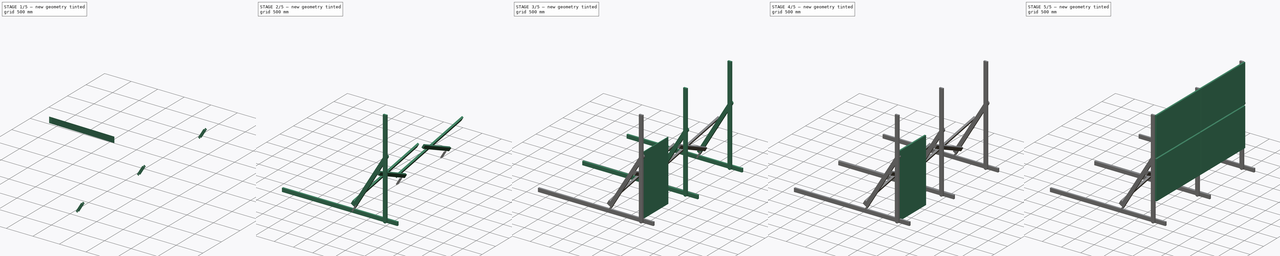
[diagram: build sequence overview — one tinted view per stage of 5, left to right]
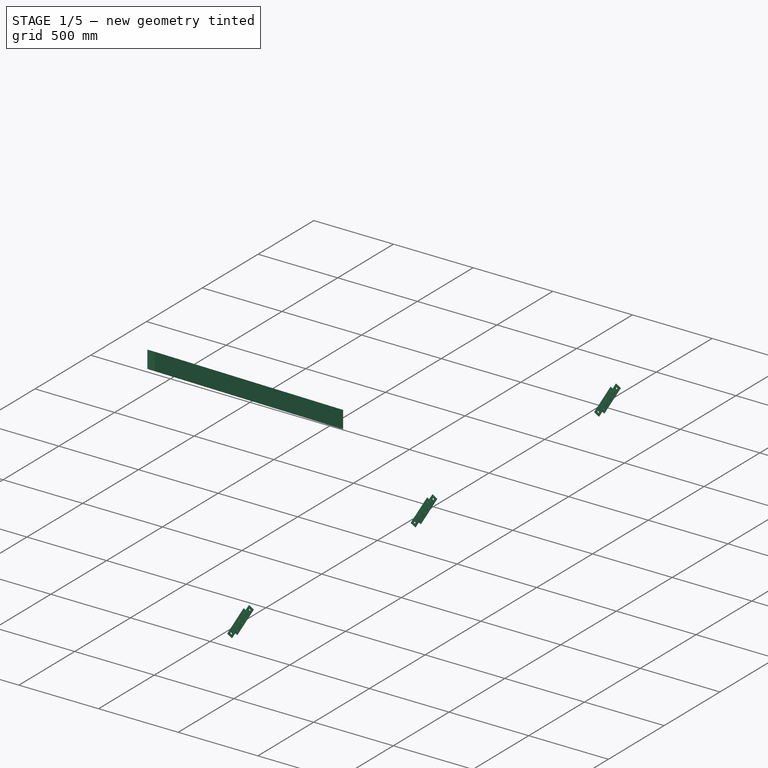
[diagram: stage 1 of 5 — iso view after this stage's code; geometry added in this stage tinted green]
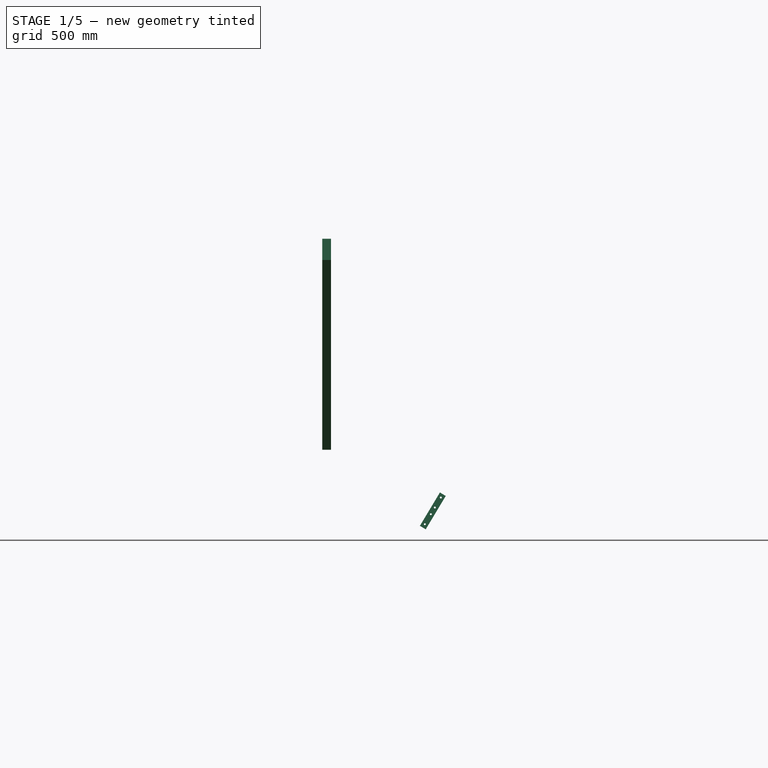
[diagram: stage 1 of 5 — front view after this stage's code; geometry added in this stage tinted green]
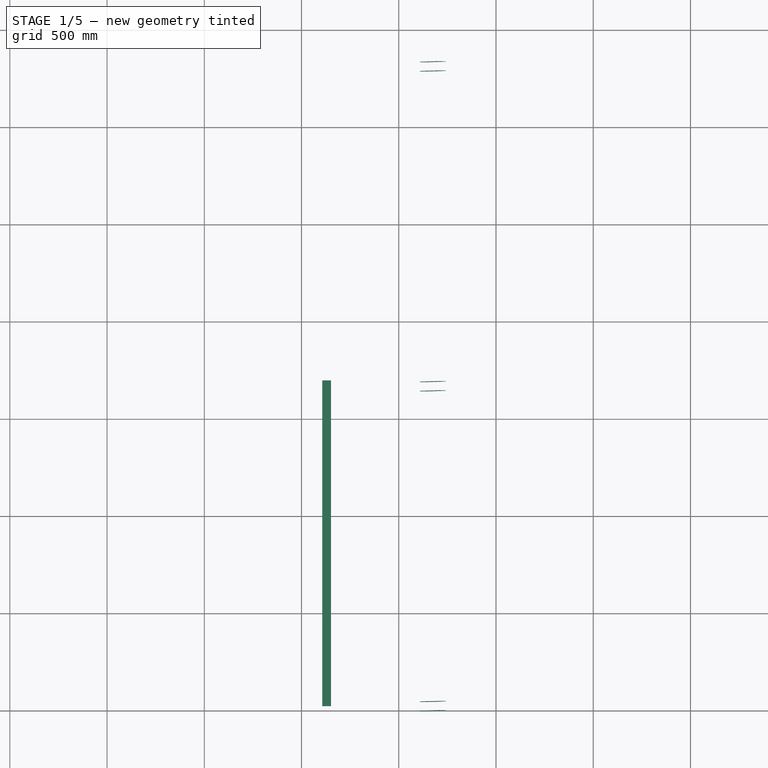
[diagram: stage 1 of 5 — top view after this stage's code; geometry added in this stage tinted green]
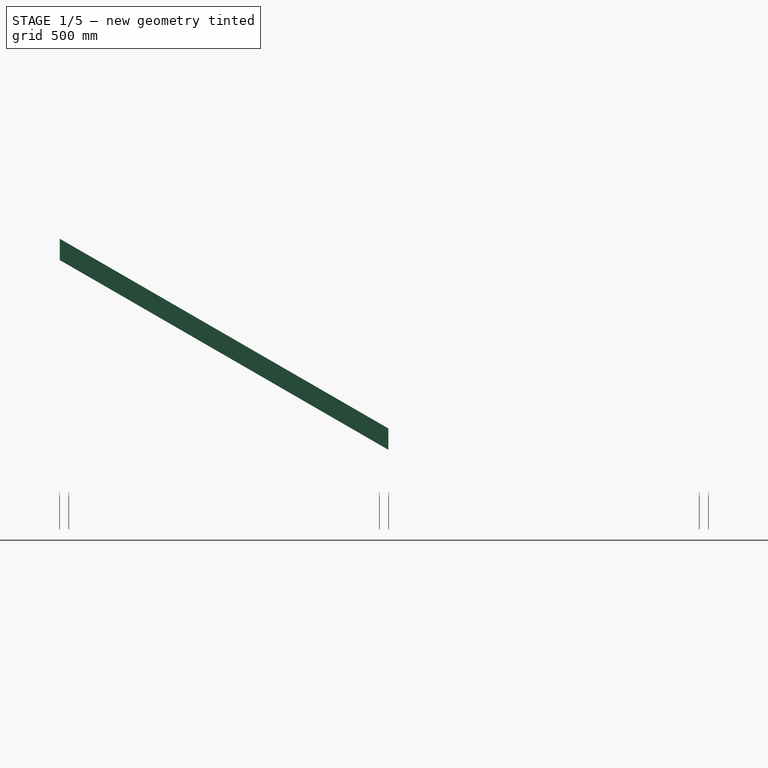
[diagram: stage 1 of 5 — right view after this stage's code; geometry added in this stage tinted green]
FCSTD DOCUMENT  (FreeCAD 0.16R)
Label: solar_mount8
License: All rights reserved
LicenseURL: http://en.wikipedia.org/wiki/All_rights_reserved
objects: Sketcher::SketchObject×9, PartDesign::Pad×8, Part::FeaturePython×6, Part::Cut×4, Part::Cylinder×4, Part::Fuse×2, Part::Compound×2, Spreadsheet::Sheet×1
note: 43 computed .brp shape members not serialized (recipe doc carries the construction recipe); baked Part::Feature solids carry a one-line shape summary decoded from their .brp

FEATURE [Sketcher::SketchObject] Sketch014
  Placement = pos=(-1488.52,4.22287e-05,258.48) rot=(0.57735,0.57735,0.57735;2.0944rad)
  expr: Constraints[20] = Spreadsheet.panel_delning + Spreadsheet.timmer_tjock
  expr: Constraints[18] = Spreadsheet.timmer_bredd
  sketch-geometry (8):
    g0: LineSegment StartX=0 StartY=0 StartZ=0 EndX=0 EndY=109.697 EndZ=0
    g1: LineSegment StartX=0 StartY=109.697 StartZ=0 EndX=1690 EndY=1085.42 EndZ=0
    g2: LineSegment StartX=1690 StartY=1085.42 StartZ=0 EndX=1690 EndY=975.722 EndZ=0
    g3: LineSegment StartX=1690 StartY=975.722 StartZ=0 EndX=0 EndY=0 EndZ=0
    g4: LineSegment [constr] StartX=1690 StartY=1085.42 StartZ=0 EndX=1737.5 EndY=1003.15 EndZ=0
    g5: LineSegment [constr] StartX=1737.5 StartY=1003.15 StartZ=0 EndX=1690 EndY=975.722 EndZ=0
    g6: LineSegment [constr] StartX=0 StartY=0 StartZ=0 EndX=-47.5 EndY=82.2724 EndZ=0
    g7: LineSegment [constr] StartX=-47.5 StartY=82.2724 StartZ=0 EndX=0 EndY=109.697 EndZ=0
  constraints (22):
    c: Coincident(g-1,g0)
    c: PointOnObject(g0,g-2)
    c: Coincident(g0,g1)
    c: Coincident(g1,g2)
    c: Vertical(g2)
    c: Coincident(g2,g3)
    c: Coincident(g3,g0)
    c: Parallel(g3,g1)
    c: Coincident(g1,g4)
    c: Coincident(g4,g5)
    c: Coincident(g5,g2)
    c: Coincident(g-1,g6)
    c: Coincident(g6,g7)
    c: Coincident(g7,g0)
    c: Parallel(g7,g1)
    c: Parallel(g5,g3)
    c: Perpendicular(g5,g4)
    c: Perpendicular(g7,g6)
    c: Distance(g-1,g6) = 95
    c: Angle(g-1,g3) = 0.523599
    c: DistanceX(g-1,g2) = 1690
    c: Distance(g-1,g4) = 2006.29
FEATURE [PartDesign::Pad] Pad012
  Length = 45
  Length2 = 100
  Placement = pos=(-1488.52,4.22287e-05,258.48) rot=(0.57735,0.57735,0.57735;2.0944rad)
  Reversed = true
  Sketch = -> Sketch014
  Type = 0
  expr: Length = Spreadsheet.timmer_tjock
FEATURE [Part::FeaturePython] Clone  label="Clone of Pad012"  # Draft clone (typed FeaturePython)
  Objects = -> [Pad012]
  Placement = pos=(-1393.52,4.22287e-05,1468.16) rot=(0.57735,0.57735,-0.57735;4.18879rad)
  Scale = (1,1,1)
FEATURE [Sketcher::SketchObject] Sketch016
  Placement = pos=(0,47.5,0) rot=(1,0,0;1.5708rad)
  expr: Constraints[40] = Spreadsheet.timmer_bredd / 2
  expr: Constraints[34] = Spreadsheet.timmer_bredd / 2
  expr: Constraints[9] = Spreadsheet.vipp_center + 1000mm
  expr: Constraints[6] = Spreadsheet.vipp_center
  sketch-geometry (46):
    g0: LineSegment [constr] StartX=0 StartY=0 StartZ=0 EndX=-866.025 EndY=0 EndZ=0
    g1: GeomPoint [constr] X=0 Y=1500 Z=0
    g2: LineSegment [constr] StartX=0 StartY=0 StartZ=0 EndX=0 EndY=1500 EndZ=0
    g3: LineSegment [constr] StartX=0 StartY=1500 StartZ=0 EndX=0 EndY=2500 EndZ=0
    g4: LineSegment [constr] StartX=0 StartY=1500 StartZ=0 EndX=-866.025 EndY=0 EndZ=0
    g5: ArcOfCircle [constr] CenterX=0 CenterY=1500 CenterZ=0 NormalX=0 NormalY=0 NormalZ=1 Radius=47.5 StartAngle=5.74227 EndAngle=8.88387
    g6: LineSegment [constr] StartX=-792.36 StartY=88.6236 StartZ=0 EndX=40.7189 EndY=1475.54 EndZ=0
    g7: LineSegment [constr] StartX=-40.7189 StartY=1524.46 StartZ=0 EndX=-873.798 EndY=137.541 EndZ=0
    g8: LineSegment [constr] StartX=0 StartY=1500 StartZ=0 EndX=-40.7189 EndY=1524.46 EndZ=0
    g9: LineSegment [constr] StartX=0 StartY=1500 StartZ=0 EndX=40.7189 EndY=1475.54 EndZ=0
    g10: LineSegment [constr] StartX=0 StartY=0 StartZ=0 EndX=-1149.07 EndY=964.181 EndZ=0
    g11: LineSegment [constr] StartX=-1149.07 StartY=964.181 StartZ=0 EndX=-2587.94 EndY=0 EndZ=0
    g12: LineSegment [constr] StartX=-2587.94 StartY=0 StartZ=0 EndX=-866.025 EndY=0 EndZ=0
    g13: LineSegment [constr] StartX=0 StartY=0 StartZ=0 EndX=0 EndY=47.5 EndZ=0
    g14: LineSegment [constr] StartX=0 StartY=47.5 StartZ=0 EndX=-2587.94 EndY=47.5 EndZ=0
    g15: LineSegment [constr] StartX=-2587.94 StartY=47.5 StartZ=0 EndX=-2587.94 EndY=0 EndZ=0
    g16: LineSegment [constr] StartX=-1149.07 StartY=964.181 StartZ=0 EndX=-1122.62 EndY=924.722 EndZ=0
    g17: LineSegment [constr] StartX=-1122.62 StartY=924.722 StartZ=0 EndX=-2482.05 EndY=47.5 EndZ=0
    g18: LineSegment [constr] StartX=-873.798 StartY=137.541 StartZ=0 EndX=-809.065 EndY=98.6578 EndZ=0
    g19: LineSegment [constr] StartX=-809.065 StartY=98.6578 StartZ=0 EndX=-792.36 EndY=88.6236 EndZ=0
    g20: LineSegment [constr] StartX=-2614.23 StartY=3.86031 StartZ=0 EndX=-2604.74 EndY=-10.844 EndZ=0
    g21: LineSegment [constr] StartX=-2604.74 StartY=-10.844 StartZ=0 EndX=-2595.26 EndY=-25.5484 EndZ=0
    g22: LineSegment [constr] StartX=-2595.26 StartY=-25.5484 StartZ=0 EndX=-2427.21 EndY=82.8919 EndZ=0
    g23: LineSegment [constr] StartX=-2427.21 StartY=82.8919 StartZ=0 EndX=-2438.38 EndY=100.216 EndZ=0
    g24: LineSegment [constr] StartX=-2438.38 StartY=100.216 StartZ=0 EndX=-2446.18 EndY=112.301 EndZ=0
    g25: LineSegment [constr] StartX=-2446.18 StartY=112.301 StartZ=0 EndX=-2614.23 EndY=3.86031 EndZ=0
    g26: LineSegment [constr] StartX=-2604.74 StartY=-10.844 StartZ=0 EndX=-2587.94 EndY=0 EndZ=0
    g27: GeomPoint [constr] X=-2482.05 Y=47.5 Z=0
    g28: LineSegment [constr] StartX=-2482.05 StartY=47.5 StartZ=0 EndX=-2492.62 EndY=63.8739 EndZ=0
    g29: LineSegment StartX=-788.355 StartY=163.322 StartZ=0 EndX=-891.338 EndY=-8.12614 EndZ=0
    g30: LineSegment StartX=-891.338 StartY=-8.12614 StartZ=0 EndX=-876.324 EndY=-17.1448 EndZ=0
    g31: LineSegment StartX=-876.324 StartY=-17.1448 StartZ=0 EndX=-861.309 EndY=-26.1634 EndZ=0
    g32: LineSegment StartX=-861.309 StartY=-26.1634 StartZ=0 EndX=-792.36 EndY=88.6236 EndZ=0
    g33: LineSegment [constr] StartX=-876.324 StartY=-17.1448 StartZ=0 EndX=-866.025 EndY=0 EndZ=0
    g34: LineSegment StartX=-792.36 StartY=88.6236 StartZ=0 EndX=-758.326 EndY=145.284 EndZ=0
    g35: LineSegment StartX=-788.355 StartY=163.322 StartZ=0 EndX=-773.34 EndY=154.303 EndZ=0
    g36: LineSegment StartX=-773.34 StartY=154.303 StartZ=0 EndX=-758.326 EndY=145.284 EndZ=0
    g37: LineSegment [constr] StartX=-866.025 StartY=0 StartZ=0 EndX=-835.13 EndY=51.4344 EndZ=0
    g38: LineSegment [constr] StartX=-835.13 StartY=51.4344 StartZ=0 EndX=-824.832 EndY=68.5792 EndZ=0
    g39: LineSegment [constr] StartX=-824.832 StartY=68.5792 StartZ=0 EndX=-814.534 EndY=85.724 EndZ=0
    g40: LineSegment [constr] StartX=-814.534 StartY=85.724 StartZ=0 EndX=-783.639 EndY=137.158 EndZ=0
    g41: LineSegment [constr] StartX=-783.639 StartY=137.158 StartZ=0 EndX=-773.34 EndY=154.303 EndZ=0
    g42: Circle CenterX=-866.025 CenterY=0 CenterZ=0 NormalX=0 NormalY=0 NormalZ=1 Radius=5
    g43: Circle CenterX=-835.13 CenterY=51.4344 CenterZ=0 NormalX=0 NormalY=0 NormalZ=1 Radius=5
    g44: Circle CenterX=-814.534 CenterY=85.724 CenterZ=0 NormalX=0 NormalY=0 NormalZ=1 Radius=5
    g45: Circle CenterX=-783.639 CenterY=137.158 CenterZ=0 NormalX=0 NormalY=0 NormalZ=1 Radius=5
  constraints (122):
    c: Coincident(g-1,g0)
    c: Horizontal(g0)
    c: Coincident(g-1,g2)
    c: Coincident(g2,g1)
    c: Coincident(g2,g3)
    c: Vertical(g3)
    c: DistanceY(g2,g2) = 1500
    c: Coincident(g4,g1)
    c: Coincident(g4,g0)
    c: DistanceY(g-1,g3) = 2500
    c: Angle(g4,g2) = 0.523599
    c: Coincident(g5,g1)
    c: Coincident(g6,g5)
    c: Coincident(g7,g5)
    c: Distance(g5,g5) = 95
    c: Vertical(g2)
    c: Coincident(g8,g1)
    c: Coincident(g8,g5)
    c: Coincident(g9,g1)
    c: Coincident(g9,g5)
    c: Equal(g8,g9)
    c: Perpendicular(g9,g6)
    c: Perpendicular(g7,g8)
    c: Coincident(g-1,g10)
    c: Coincident(g10,g11)
    c: Coincident(g11,g12)
    c: Coincident(g12,g0)
    c: Horizontal(g12)
    c: Coincident(g-1,g13)
    c: Coincident(g13,g14)
    c: Horizontal(g14)
    c: Coincident(g14,g15)
    c: Coincident(g15,g11)
    c: Vertical(g15)
    c: Distance(g13) = 47.5
    c: Vertical(g13)
    c: Coincident(g10,g16)
    c: Coincident(g16,g17)
    c: Equal(g11,g4)
    c: Equal(g10,g2)
    c: Distance(g16) = 47.5
    c: Perpendicular(g11,g16)
    c: Coincident(g7,g18)
    c: PointOnObject(g18,g4)
    c: Coincident(g18,g19)
    c: Coincident(g19,g6)
    c: Parallel(g19,g18)
    c: Perpendicular(g6,g19)
    c: Distance(g6,g7) = 95
    c: Coincident(g20,g21)
    c: Coincident(g21,g22)
    c: Coincident(g22,g23)
    c: PointOnObject(g23,g11)
    c: Coincident(g23,g24)
    c: Coincident(g24,g25)
    c: Coincident(g25,g20)
    c: Parallel(g21,g20)
    c: Parallel(g20,g24)
    c: Parallel(g24,g23)
    c: Parallel(g25,g22)
    c: Perpendicular(g25,g24)
    c: Parallel(g17,g22)
    c: Distance(g24,g20) = 200
    c: Distance(g21,g20) = 35
    c: Coincident(g20,g26)
    c: Coincident(g26,g11)
    c: Parallel(g26,g22)
    c: Distance(g26) = 20
    c: PointOnObject(g17,g14)
    c: PointOnObject(g27,g22)
    c: Coincident(g27,g17)
    c: Equal(g20,g21)
    c: Equal(g6,g17)
    c: Coincident(g17,g28)
    c: PointOnObject(g28,g11)
    c: Perpendicular(g22,g28)
    c: Equal(g28,g19)
    c: Angle(g10,g0) = 0.698132
    c: PointOnObject(g34,g6)
    c: Coincident(g29,g30)
    c: Coincident(g30,g31)
    c: Coincident(g31,g32)
    c: Coincident(g32,g6)
    c: Parallel(g32,g29)
    c: Parallel(g29,g6)
    c: Parallel(g30,g31)
    c: Coincident(g30,g33)
    c: Coincident(g33,g0)
    c: Coincident(g6,g34)
    c: Equal(g33,g26)
    c: Equal(g25,g29)
    c: Equal(g31,g30)
    c: Coincident(g29,g35)
    c: Coincident(g35,g36)
    c: Coincident(g36,g34)
    c: Parallel(g36,g35)
    c: Equal(g36,g35)
    c: Perpendicular(g35,g29)
    c: Parallel(g30,g35)
    c: Parallel(g33,g32)
    c: Coincident(g0,g37)
    c: Coincident(g37,g38)
    c: Coincident(g38,g39)
    c: Parallel(g39,g38)
    c: Parallel(g38,g37)
    c: Coincident(g39,g40)
    c: Coincident(g40,g41)
    c: Coincident(g41,g35)
    c: Parallel(g41,g40)
    c: Parallel(g40,g39)
    c: Equal(g41,g33)
    c: Equal(g39,g38)
    c: Equal(g38,g41)
    c: Equal(g37,g40)
    c: Coincident(g42,g0)
    c: Coincident(g43,g37)
    c: Coincident(g44,g39)
    c: Coincident(g45,g40)
    c: Equal(g45,g44)
    c: Equal(g44,g43)
    c: Equal(g43,g42)
    c: Radius(g42) = 5
FEATURE [PartDesign::Pad] Pad014
  Length = 2.5
  Length2 = 100
  Placement = pos=(0,47.5,0) rot=(1,0,0;1.5708rad)
  Sketch = -> Sketch016
  Type = 0
FEATURE [Part::FeaturePython] Array006  # Draft array (typed FeaturePython)
  Angle = 360
  ArrayType = 0
  Axis = (0,0,1)
  Base = -> Pad014
  Center = (0,0,0)
  Fuse = false
  IntervalAxis = (0,0,0)
  IntervalX = (1,0,0)
  IntervalY = (0,-47.5,0)
  IntervalZ = (0,0,0)
  NumberPolar = 1
  NumberX = 1
  NumberY = 2
  NumberZ = 1
  expr: IntervalY.y = -Spreadsheet.timmer_tjock - 2.5mm
FEATURE [Part::FeaturePython] Array007  label="Hålplattor"  # Draft array (typed FeaturePython)
  Angle = 360
  ArrayType = 0
  Axis = (0,0,1)
  Base = -> Array006
  Center = (0,0,0)
  Fuse = false
  IntervalAxis = (0,0,0)
  IntervalX = (1,0,0)
  IntervalY = (0,1645,0)
  IntervalZ = (0,0,0)
  NumberPolar = 1
  NumberX = 1
  NumberY = 3
  NumberZ = 1
  expr: NumberY = Spreadsheet.antal_paneler / 2 + 1
  expr: IntervalY.y = Spreadsheet.panel_delning
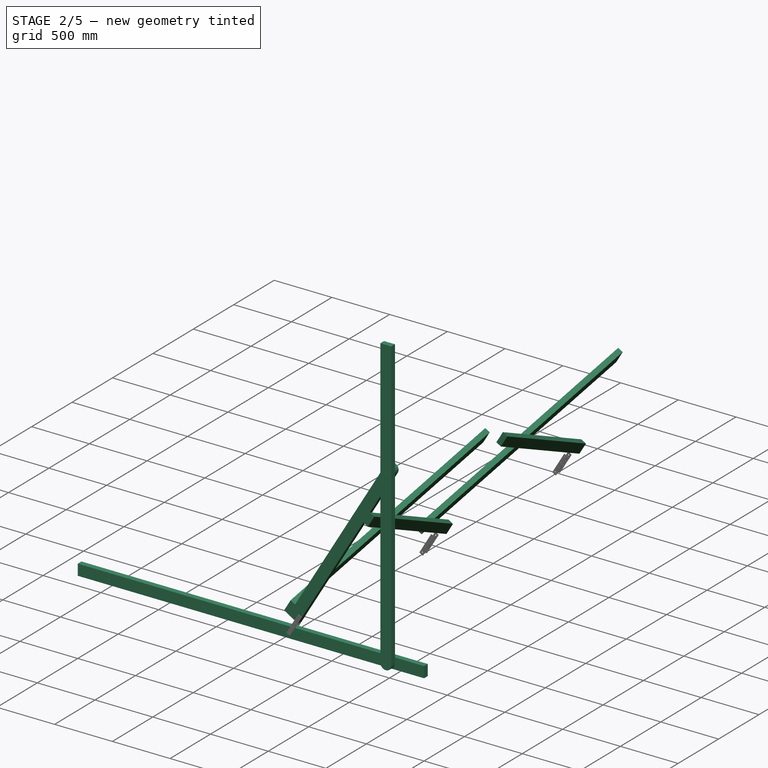
[diagram: stage 2 of 5 — iso view after this stage's code; geometry added in this stage tinted green]
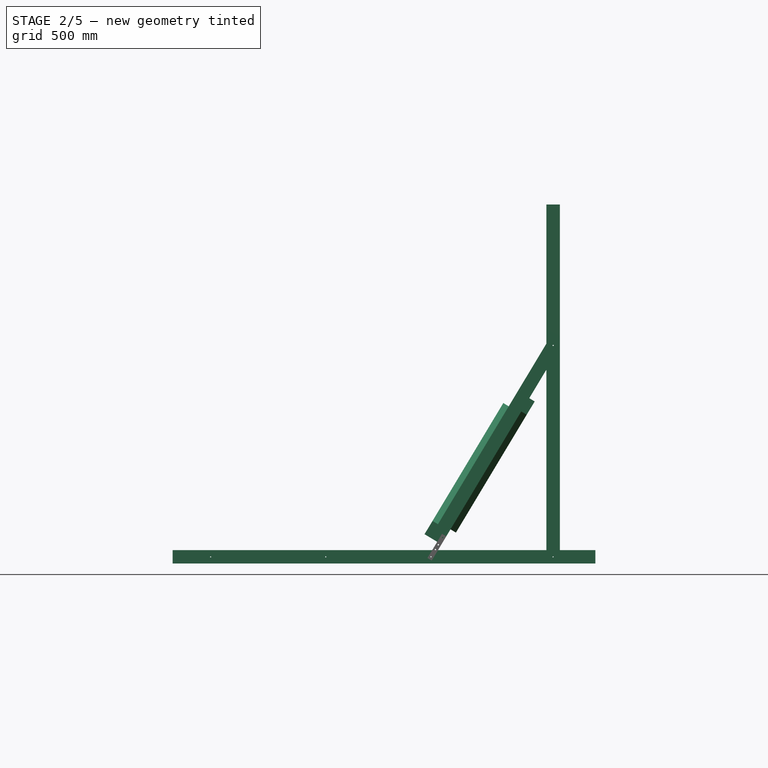
[diagram: stage 2 of 5 — front view after this stage's code; geometry added in this stage tinted green]
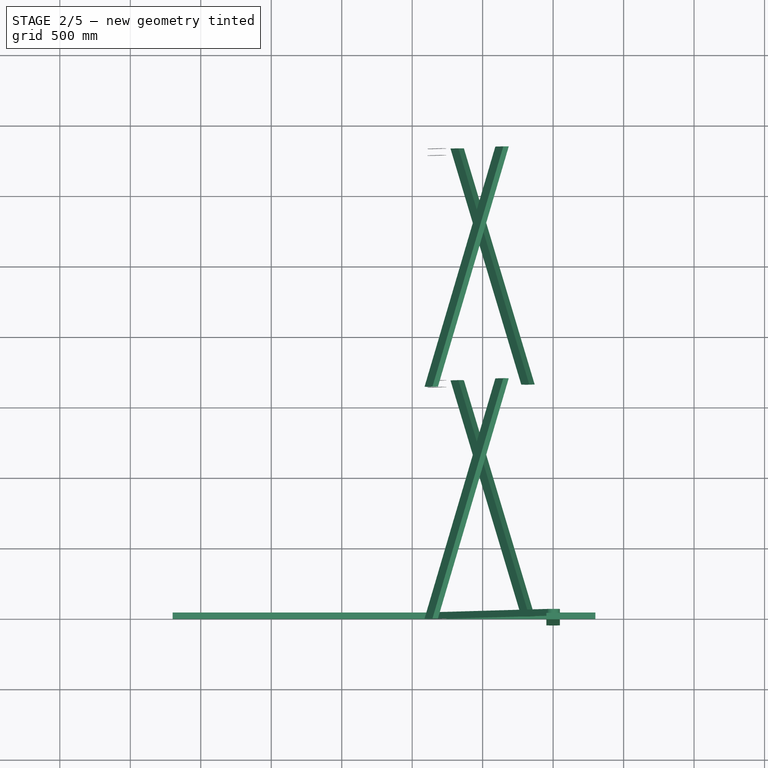
[diagram: stage 2 of 5 — top view after this stage's code; geometry added in this stage tinted green]
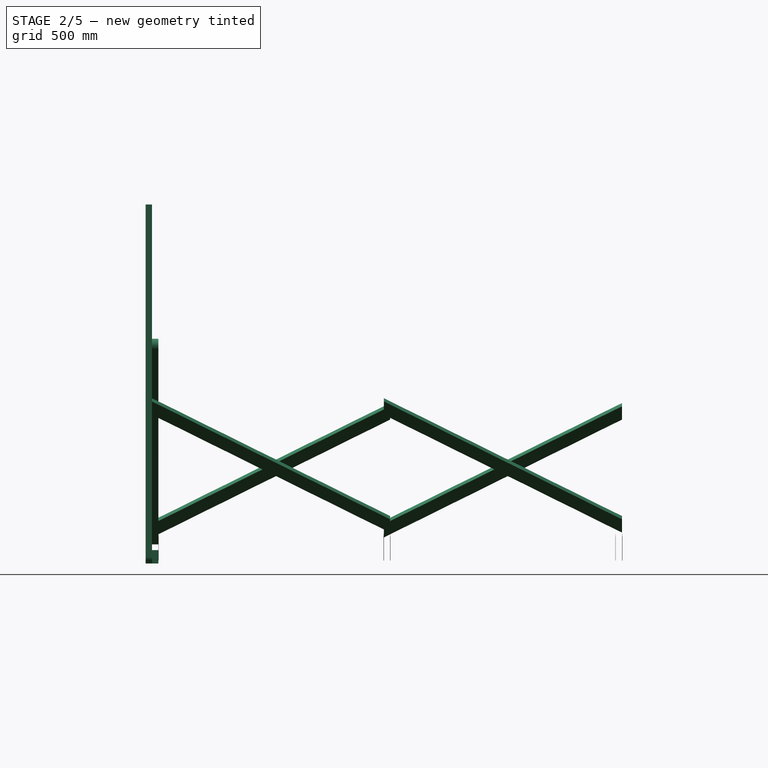
[diagram: stage 2 of 5 — right view after this stage's code; geometry added in this stage tinted green]
FEATURE [Sketcher::SketchObject] Sketch009
  Placement = pos=(0,0,0) rot=(1,0,0;1.5708rad)
  sketch-geometry (20):
    g0: LineSegment StartX=0 StartY=0 StartZ=0 EndX=-1154.7 EndY=0 EndZ=0
    g1: GeomPoint [constr] X=0 Y=2000 Z=0
    g2: LineSegment StartX=0 StartY=0 StartZ=0 EndX=-1414.21 EndY=1414.21 EndZ=0
    g3: LineSegment [constr] StartX=-1414.21 StartY=1414.21 StartZ=0 EndX=-3239.96 EndY=0 EndZ=0
    g4: LineSegment StartX=0 StartY=0 StartZ=0 EndX=0 EndY=2000 EndZ=0
    g5: LineSegment StartX=0 StartY=2000 StartZ=0 EndX=0 EndY=3000 EndZ=0
    g6: LineSegment StartX=0 StartY=2000 StartZ=0 EndX=-1154.7 EndY=0 EndZ=0
    g7: LineSegment StartX=-1154.7 StartY=0 StartZ=0 EndX=-3239.96 EndY=0 EndZ=0
    g8: LineSegment StartX=0 StartY=0 StartZ=0 EndX=-765.367 EndY=1847.76 EndZ=0
    g9: LineSegment StartX=-765.367 StartY=1847.76 StartZ=0 EndX=-2150.69 EndY=0 EndZ=0
    g10: LineSegment StartX=-3239.96 StartY=0 StartZ=0 EndX=-4000 EndY=0 EndZ=0
    g11: LineSegment StartX=-1414.21 StartY=1414.21 StartZ=0 EndX=-1694.63 EndY=1197 EndZ=0
    g12: LineSegment StartX=-1694.63 StartY=1197 StartZ=0 EndX=-2959.54 EndY=217.209 EndZ=0
    g13: LineSegment StartX=-2959.54 StartY=217.209 StartZ=0 EndX=-3239.96 EndY=0 EndZ=0
    g14: LineSegment StartX=-3239.96 StartY=0 StartZ=0 EndX=-4219.75 EndY=1264.91 EndZ=0
    g15: LineSegment StartX=-4219.75 StartY=1264.91 StartZ=0 EndX=-3939.34 EndY=1482.12 EndZ=0
    g16: LineSegment StartX=-3939.34 StartY=1482.12 StartZ=0 EndX=-2674.42 EndY=2461.92 EndZ=0
    g17: LineSegment StartX=-2674.42 StartY=2461.92 StartZ=0 EndX=-2394.01 EndY=2679.12 EndZ=0
    g18: LineSegment StartX=-2394.01 StartY=2679.12 StartZ=0 EndX=-1414.21 EndY=1414.21 EndZ=0
    g19: LineSegment StartX=-3939.34 StartY=1482.12 StartZ=0 EndX=-1694.63 EndY=1197 EndZ=0
  constraints (52):
    c: Coincident(g-1,g0)
    c: Horizontal(g0)
    c: Coincident(g-1,g2)
    c: Coincident(g2,g3)
    c: Coincident(g-1,g4)
    c: Coincident(g4,g1)
    c: Vertical(g4)
    c: Coincident(g4,g5)
    c: Vertical(g5)
    c: Equal(g4,g2)
    c: DistanceY(g4,g4) = 2000
    c: Angle(g4,g2) = 0.785398
    c: Coincident(g6,g1)
    c: Coincident(g6,g0)
    c: Coincident(g6,g7)
    c: Coincident(g7,g3)
    c: Horizontal(g7)
    c: Equal(g6,g3)
    c: Coincident(g-1,g8)
    c: Coincident(g8,g9)
    c: PointOnObject(g9,g7)
    c: Equal(g9,g6)
    c: Equal(g8,g4)
    c: Angle(g4,g8) = 0.392699
    c: DistanceY(g-1,g5) = 3000
    c: Coincident(g3,g10)
    c: Horizontal(g10)
    c: Angle(g6,g4) = 0.523599
    c: DistanceX(g10,g-1) = 4000
    c: Coincident(g2,g11)
    c: Coincident(g11,g12)
    c: Coincident(g12,g13)
    c: Coincident(g13,g3)
    c: Coincident(g13,g14)
    c: Coincident(g14,g15)
    c: Coincident(g15,g16)
    c: Coincident(g16,g17)
    c: Coincident(g17,g18)
    c: Coincident(g18,g11)
    c: Perpendicular(g14,g3)
    c: Distance(g17,g2) = 1600
    c: Equal(g15,g13)
    c: Equal(g13,g11)
    c: Equal(g11,g17)
    c: Parallel(g15,g16)
    c: Parallel(g16,g17)
    c: Equal(g14,g18)
    c: Perpendicular(g3,g18)
    c: Tangent(g12,g3) = -1.5708
    c: Coincident(g15,g19)
    c: Coincident(g19,g11)
    c: Angle(g19,g3) = 0.785398
FEATURE [Sketcher::SketchObject] Sketch010
  Placement = pos=(0,0,0) rot=(1,0,0;1.5708rad)
  expr: Constraints[24] = Spreadsheet.timmer_bredd
  expr: Constraints[9] = Spreadsheet.vipp_center + 1000mm
  expr: Constraints[6] = Spreadsheet.vipp_center
  sketch-geometry (14):
    g0: LineSegment [constr] StartX=0 StartY=0 StartZ=0 EndX=-866.025 EndY=0 EndZ=0
    g1: GeomPoint [constr] X=0 Y=1500 Z=0
    g2: LineSegment [constr] StartX=0 StartY=0 StartZ=0 EndX=0 EndY=1500 EndZ=0
    g3: LineSegment [constr] StartX=0 StartY=1500 StartZ=0 EndX=0 EndY=2500 EndZ=0
    g4: LineSegment [constr] StartX=0 StartY=1500 StartZ=0 EndX=-866.025 EndY=0 EndZ=0
    g5: LineSegment [constr] StartX=0 StartY=2e-11 StartZ=0 EndX=47.5 EndY=2e-11 EndZ=0
    g6: LineSegment StartX=47.5 StartY=2e-11 StartZ=0 EndX=47.5 EndY=2500 EndZ=0
    g7: LineSegment StartX=47.5 StartY=2500 StartZ=0 EndX=0 EndY=2500 EndZ=0
    g8: LineSegment StartX=0 StartY=2500 StartZ=0 EndX=-47.5 EndY=2500 EndZ=0
    g9: LineSegment StartX=-47.5 StartY=2500 StartZ=0 EndX=-47.5 EndY=2e-11 EndZ=0
    g10: LineSegment [constr] StartX=-47.5 StartY=2e-11 StartZ=0 EndX=0 EndY=2e-11 EndZ=0
    g11: Circle CenterX=0 CenterY=1500 CenterZ=0 NormalX=0 NormalY=0 NormalZ=1 Radius=4
    g12: Circle CenterX=0 CenterY=0 CenterZ=0 NormalX=0 NormalY=0 NormalZ=1 Radius=4
    g13: ArcOfCircle CenterX=0 CenterY=0 CenterZ=0 NormalX=0 NormalY=0 NormalZ=1 Radius=47.5 StartAngle=3.14159 EndAngle=6.28319
  constraints (35):
    c: Coincident(g-1,g0)
    c: Horizontal(g0)
    c: Coincident(g-1,g2)
    c: Coincident(g2,g1)
    c: Coincident(g2,g3)
    c: Vertical(g3)
    c: DistanceY(g2,g2) = 1500
    c: Coincident(g4,g1)
    c: Coincident(g4,g0)
    c: DistanceY(g-1,g3) = 2500
    c: Angle(g4,g2) = 0.523599
    c: Vertical(g2)
    c: Horizontal(g5)
    c: Coincident(g5,g6)
    c: Vertical(g6)
    c: Coincident(g6,g7)
    c: Coincident(g7,g3)
    c: Coincident(g7,g8)
    c: Horizontal(g8)
    c: Coincident(g8,g9)
    c: Vertical(g9)
    c: Coincident(g9,g10)
    c: Coincident(g10,g5)
    c: Horizontal(g10)
    c: DistanceX(g9,g5) = 95
    c: Equal(g10,g5)
    c: Horizontal(g7)
    c: Coincident(g11,g1)
    c: Coincident(g12,g-1)
    c: Equal(g12,g11)
    c: Radius(g12) = 4
    c: Coincident(g5,g-1)
    c: Coincident(g13,g-1)
    c: Coincident(g13,g5)
    c: Coincident(g13,g9)
FEATURE [PartDesign::Pad] Pad008  label="Vipparm"
  Length = 45
  Length2 = 100
  Placement = pos=(0,0,0) rot=(1,0,0;1.5708rad)
  Sketch = -> Sketch010
  Type = 0
FEATURE [Sketcher::SketchObject] Sketch011
  Placement = pos=(0,0,0) rot=(1,0,0;1.5708rad)
  expr: Constraints[43] = Spreadsheet.timmer_bredd
  expr: Constraints[23] = Spreadsheet.vipp_center + 1000mm
  expr: Constraints[9] = Spreadsheet.vipp_center
  sketch-geometry (21):
    g0: LineSegment [constr] StartX=0 StartY=0 StartZ=0 EndX=-866.025 EndY=0 EndZ=0
    g1: GeomPoint [constr] X=0 Y=1500 Z=0
    g2: LineSegment [constr] StartX=0 StartY=0 StartZ=0 EndX=-1060.66 EndY=1060.66 EndZ=0
    g3: LineSegment [constr] StartX=-1060.66 StartY=1060.66 StartZ=0 EndX=-2429.97 EndY=0 EndZ=0
    g4: LineSegment [constr] StartX=0 StartY=0 StartZ=0 EndX=0 EndY=1500 EndZ=0
    g5: LineSegment [constr] StartX=0 StartY=1500 StartZ=0 EndX=0 EndY=2500 EndZ=0
    g6: LineSegment [constr] StartX=0 StartY=1500 StartZ=0 EndX=-866.025 EndY=0 EndZ=0
    g7: LineSegment [constr] StartX=-866.025 StartY=0 StartZ=0 EndX=-2429.97 EndY=0 EndZ=0
    g8: LineSegment [constr] StartX=0 StartY=0 StartZ=0 EndX=-574.025 EndY=1385.82 EndZ=0
    g9: LineSegment [constr] StartX=-574.025 StartY=1385.82 StartZ=0 EndX=-1613.02 EndY=0 EndZ=0
    g10: LineSegment [constr] StartX=-2429.97 StartY=0 StartZ=0 EndX=-2700 EndY=0 EndZ=0
    g11: LineSegment StartX=300 StartY=0 StartZ=0 EndX=300 EndY=47.5 EndZ=0
    g12: LineSegment StartX=300 StartY=47.5 StartZ=0 EndX=-2700 EndY=47.5 EndZ=0
    g13: LineSegment StartX=-2700 StartY=47.5 StartZ=0 EndX=-2700 EndY=0 EndZ=0
    g14: LineSegment StartX=-2700 StartY=0 StartZ=0 EndX=-2700 EndY=-47.5 EndZ=0
    g15: LineSegment StartX=-2700 StartY=-47.5 StartZ=0 EndX=300 EndY=-47.5 EndZ=0
    g16: LineSegment StartX=300 StartY=-47.5 StartZ=0 EndX=300 EndY=0 EndZ=0
    g17: Circle CenterX=0 CenterY=0 CenterZ=0 NormalX=0 NormalY=0 NormalZ=1 Radius=4
    g18: Circle CenterX=-866.025 CenterY=0 CenterZ=0 NormalX=0 NormalY=0 NormalZ=1 Radius=4
    g19: Circle CenterX=-1613.02 CenterY=0 CenterZ=0 NormalX=0 NormalY=0 NormalZ=1 Radius=4
    g20: Circle CenterX=-2429.97 CenterY=0 CenterZ=0 NormalX=0 NormalY=0 NormalZ=1 Radius=4
  constraints (54):
    c: Coincident(g-1,g0)
    c: Horizontal(g0)
    c: Coincident(g-1,g2)
    c: Coincident(g-1,g4)
    c: Coincident(g4,g1)
    c: Vertical(g4)
    c: Coincident(g4,g5)
    c: Vertical(g5)
    c: Equal(g4,g2)
    c: DistanceY(g4,g4) = 1500
    c: Angle(g4,g2) = 0.785398
    c: Coincident(g6,g1)
    c: Coincident(g6,g0)
    c: Coincident(g6,g7)
    c: Coincident(g7,g3)
    c: Horizontal(g7)
    c: Equal(g6,g3)
    c: Coincident(g-1,g8)
    c: Coincident(g8,g9)
    c: PointOnObject(g9,g7)
    c: Equal(g9,g6)
    c: Equal(g8,g4)
    c: Angle(g4,g8) = 0.392699
    c: DistanceY(g-1,g5) = 2500
    c: Coincident(g3,g10)
    c: Horizontal(g10)
    c: Angle(g6,g4) = 0.523599
    c: DistanceX(g10,g-1) = 2700
    c: Coincident(g2,g3)
    c: PointOnObject(g11,g-1)
    c: Vertical(g11)
    c: Coincident(g11,g12)
    c: Horizontal(g12)
    c: Coincident(g12,g13)
    c: Coincident(g13,g10)
    c: Coincident(g13,g14)
    c: Vertical(g14)
    c: Coincident(g14,g15)
    c: Horizontal(g15)
    c: Coincident(g15,g16)
    c: Coincident(g16,g11)
    c: Vertical(g16)
    c: Equal(g16,g11)
    c: DistanceY(g15,g11) = 95
    c: Vertical(g13)
    c: DistanceX(g-1,g15) = 300
    c: Coincident(g17,g-1)
    c: Coincident(g18,g0)
    c: Coincident(g19,g9)
    c: Coincident(g20,g3)
    c: Equal(g20,g19)
    c: Equal(g19,g18)
    c: Equal(g18,g17)
    c: Radius(g17) = 4
FEATURE [PartDesign::Pad] Pad009  label="Bas001"
  Length = 45
  Length2 = 100
  Placement = pos=(0,0,0) rot=(1,0,0;1.5708rad)
  Reversed = true
  Sketch = -> Sketch011
  Type = 0
FEATURE [Sketcher::SketchObject] Sketch013
  Placement = pos=(0,45,0) rot=(1,0,0;1.5708rad)
  expr: Constraints[42] = Spreadsheet.timmer_bredd / 2
  expr: Constraints[36] = Spreadsheet.timmer_bredd / 2
  expr: Constraints[9] = Spreadsheet.vipp_center + 1000mm
  expr: Constraints[6] = Spreadsheet.vipp_center
  sketch-geometry (33):
    g0: LineSegment [constr] StartX=0 StartY=0 StartZ=0 EndX=-866.025 EndY=0 EndZ=0
    g1: GeomPoint [constr] X=0 Y=1500 Z=0
    g2: LineSegment [constr] StartX=0 StartY=0 StartZ=0 EndX=0 EndY=1500 EndZ=0
    g3: LineSegment [constr] StartX=0 StartY=1500 StartZ=0 EndX=0 EndY=2500 EndZ=0
    g4: LineSegment [constr] StartX=0 StartY=1500 StartZ=0 EndX=-866.025 EndY=0 EndZ=0
    g5: ArcOfCircle CenterX=0 CenterY=1500 CenterZ=0 NormalX=0 NormalY=0 NormalZ=1 Radius=47.5 StartAngle=5.74227 EndAngle=8.88387
    g6: LineSegment StartX=-792.36 StartY=88.6236 StartZ=0 EndX=40.7189 EndY=1475.54 EndZ=0
    g7: LineSegment StartX=-40.7189 StartY=1524.46 StartZ=0 EndX=-873.798 EndY=137.541 EndZ=0
    g8: LineSegment [constr] StartX=0 StartY=1500 StartZ=0 EndX=-40.7189 EndY=1524.46 EndZ=0
    g9: LineSegment [constr] StartX=0 StartY=1500 StartZ=0 EndX=40.7189 EndY=1475.54 EndZ=0
    g10: Circle CenterX=0 CenterY=1500 CenterZ=0 NormalX=0 NormalY=0 NormalZ=1 Radius=4
    g11: LineSegment [constr] StartX=0 StartY=0 StartZ=0 EndX=-1149.07 EndY=964.181 EndZ=0
    g12: LineSegment [constr] StartX=-1149.07 StartY=964.181 StartZ=0 EndX=-2587.94 EndY=0 EndZ=0
    g13: LineSegment [constr] StartX=-2587.94 StartY=0 StartZ=0 EndX=-866.025 EndY=0 EndZ=0
    g14: LineSegment [constr] StartX=0 StartY=0 StartZ=0 EndX=0 EndY=47.5 EndZ=0
    g15: LineSegment [constr] StartX=0 StartY=47.5 StartZ=0 EndX=-2587.94 EndY=47.5 EndZ=0
    g16: LineSegment [constr] StartX=-2587.94 StartY=47.5 StartZ=0 EndX=-2587.94 EndY=0 EndZ=0
    g17: LineSegment [constr] StartX=-1149.07 StartY=964.181 StartZ=0 EndX=-1122.62 EndY=924.722 EndZ=0
    g18: LineSegment [constr] StartX=-1122.62 StartY=924.722 StartZ=0 EndX=-2482.05 EndY=47.5 EndZ=0
    g19: LineSegment StartX=-873.798 StartY=137.541 StartZ=0 EndX=-809.065 EndY=98.6578 EndZ=0
    g20: LineSegment StartX=-809.065 StartY=98.6578 StartZ=0 EndX=-792.36 EndY=88.6236 EndZ=0
    g21: LineSegment [constr] StartX=-2614.23 StartY=3.86031 StartZ=0 EndX=-2604.74 EndY=-10.844 EndZ=0
    g22: LineSegment [constr] StartX=-2604.74 StartY=-10.844 StartZ=0 EndX=-2595.26 EndY=-25.5484 EndZ=0
    g23: LineSegment [constr] StartX=-2595.26 StartY=-25.5484 StartZ=0 EndX=-2427.21 EndY=82.8919 EndZ=0
    g24: LineSegment [constr] StartX=-2427.21 StartY=82.8919 StartZ=0 EndX=-2438.38 EndY=100.216 EndZ=0
    g25: LineSegment [constr] StartX=-2438.38 StartY=100.216 StartZ=0 EndX=-2446.18 EndY=112.301 EndZ=0
    g26: LineSegment [constr] StartX=-2446.18 StartY=112.301 StartZ=0 EndX=-2614.23 EndY=3.86031 EndZ=0
    g27: LineSegment [constr] StartX=-2604.74 StartY=-10.844 StartZ=0 EndX=-2587.94 EndY=0 EndZ=0
    g28: GeomPoint [constr] X=-2482.05 Y=47.5 Z=0
    g29: LineSegment [constr] StartX=-2482.05 StartY=47.5 StartZ=0 EndX=-2492.62 EndY=63.8739 EndZ=0
    g30: LineSegment [constr] StartX=0 StartY=1500 StartZ=0 EndX=23.75 EndY=1541.14 EndZ=0
    g31: LineSegment [constr] StartX=-873.798 StartY=137.541 StartZ=0 EndX=-833.079 EndY=113.082 EndZ=0
    g32: LineSegment [constr] StartX=-833.079 StartY=113.082 StartZ=0 EndX=-792.36 EndY=88.6236 EndZ=0
  constraints (89):
    c: Coincident(g-1,g0)
    c: Horizontal(g0)
    c: Coincident(g-1,g2)
    c: Coincident(g2,g1)
    c: Coincident(g2,g3)
    c: Vertical(g3)
    c: DistanceY(g2,g2) = 1500
    c: Coincident(g4,g1)
    c: Coincident(g4,g0)
    c: DistanceY(g-1,g3) = 2500
    c: Angle(g4,g2) = 0.523599
    c: Coincident(g5,g1)
    c: Coincident(g6,g5)
    c: Coincident(g7,g5)
    c: Distance(g5,g5) = 95
    c: Vertical(g2)
    c: Coincident(g8,g1)
    c: Coincident(g8,g5)
    c: Coincident(g9,g1)
    c: Coincident(g9,g5)
    c: Equal(g8,g9)
    c: Perpendicular(g9,g6)
    c: Perpendicular(g7,g8)
    c: Coincident(g10,g1)
    c: Radius(g10) = 4
    c: Coincident(g-1,g11)
    c: Coincident(g11,g12)
    c: Coincident(g12,g13)
    c: Coincident(g13,g0)
    c: Horizontal(g13)
    c: Coincident(g-1,g14)
    c: Coincident(g14,g15)
    c: Horizontal(g15)
    c: Coincident(g15,g16)
    c: Coincident(g16,g12)
    c: Vertical(g16)
    c: Distance(g14) = 47.5
    c: Vertical(g14)
    c: Coincident(g11,g17)
    c: Coincident(g17,g18)
    c: Equal(g12,g4)
    c: Equal(g11,g2)
    c: Distance(g17) = 47.5
    c: Perpendicular(g12,g17)
    c: Coincident(g7,g19)
    c: PointOnObject(g19,g4)
    c: Coincident(g19,g20)
    c: Coincident(g20,g6)
    c: Parallel(g20,g19)
    c: Perpendicular(g6,g20)
    c: Distance(g6,g7) = 95
    c: Coincident(g21,g22)
    c: Coincident(g22,g23)
    c: Coincident(g23,g24)
    c: PointOnObject(g24,g12)
    c: Coincident(g24,g25)
    c: Coincident(g25,g26)
    c: Coincident(g26,g21)
    c: Parallel(g22,g21)
    c: Parallel(g21,g25)
    c: Parallel(g25,g24)
    c: Parallel(g26,g23)
    c: Perpendicular(g26,g25)
    c: Parallel(g18,g23)
    c: Distance(g25,g21) = 200
    c: Distance(g22,g21) = 35
    c: Coincident(g21,g27)
    c: Coincident(g27,g12)
    c: Parallel(g27,g23)
    c: Distance(g27) = 20
    c: PointOnObject(g18,g15)
    c: PointOnObject(g28,g23)
    c: Coincident(g28,g18)
    c: Equal(g21,g22)
    c: Equal(g6,g18)
    c: Coincident(g18,g29)
    c: PointOnObject(g29,g12)
    c: Perpendicular(g23,g29)
    c: Equal(g29,g20)
    c: Angle(g11,g0) = 0.698132
    c: Coincident(g30,g1)
    c: PointOnObject(g30,g5)
    c: Parallel(g30,g4)
    c: Coincident(g7,g31)
    c: Coincident(g31,g32)
    c: Coincident(g32,g6)
    c: Equal(g31,g32)
    c: Parallel(g32,g19)
    c: Distance(g31,g30) = 1665.38
FEATURE [PartDesign::Pad] Pad011  label="Justeringsarm"
  Length = 45
  Length2 = 100
  Placement = pos=(0,45,0) rot=(1,0,0;1.5708rad)
  Sketch = -> Sketch013
  Type = 0
  expr: Length = Spreadsheet.timmer_tjock
FEATURE [Part::Compound] Compound001  label="Kryss"
  Links = -> [Clone,Pad012]
FEATURE [Part::FeaturePython] Array002  label="KryssArray"  # Draft array (typed FeaturePython)
  Angle = 360
  ArrayType = 0
  Axis = (0,0,1)
  Base = -> Compound001
  Center = (0,0,0)
  Fuse = false
  IntervalAxis = (0,0,0)
  IntervalX = (1,0,0)
  IntervalY = (0,1645,0)
  IntervalZ = (0,0,0)
  NumberPolar = 1
  NumberX = 1
  NumberY = 2
  NumberZ = 1
  Placement = pos=(269.127,-4.22287e-05,-850.505) rot=(0,1,0;0.540912rad)
  expr: IntervalY.y = Spreadsheet.panel_delning
  expr: NumberY = Spreadsheet.antal_paneler / 2
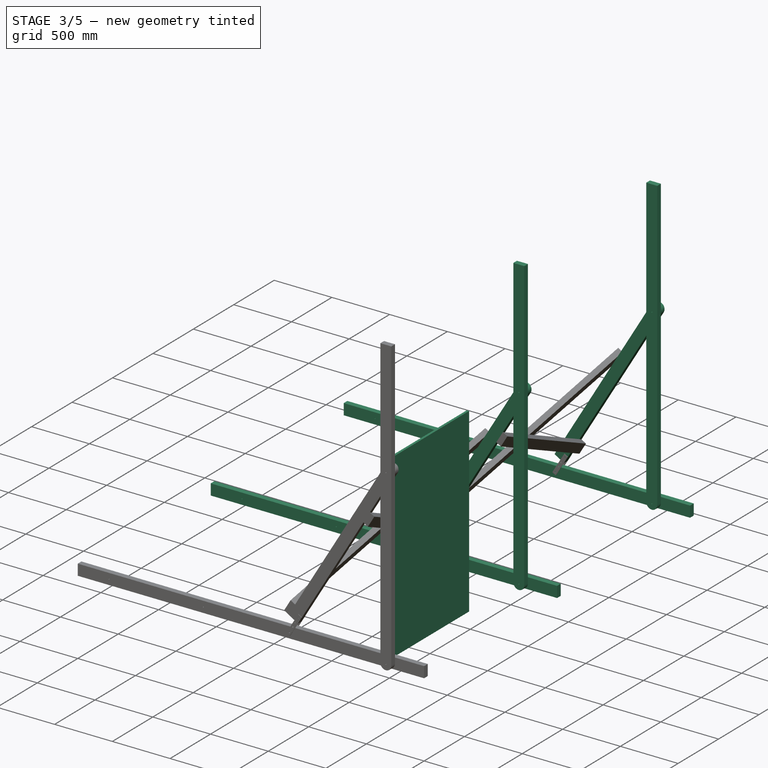
[diagram: stage 3 of 5 — iso view after this stage's code; geometry added in this stage tinted green]
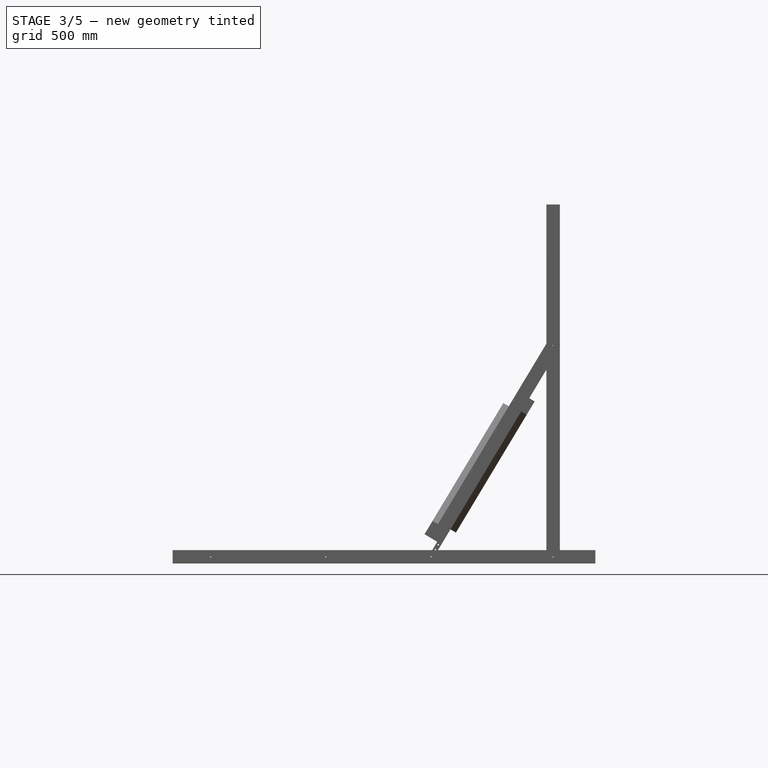
[diagram: stage 3 of 5 — front view after this stage's code; geometry added in this stage tinted green]
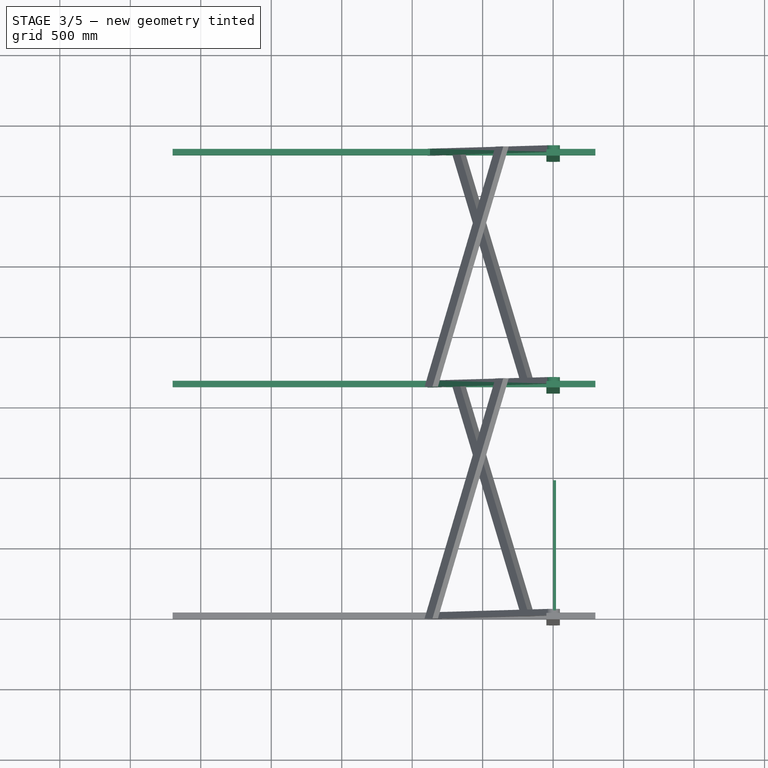
[diagram: stage 3 of 5 — top view after this stage's code; geometry added in this stage tinted green]
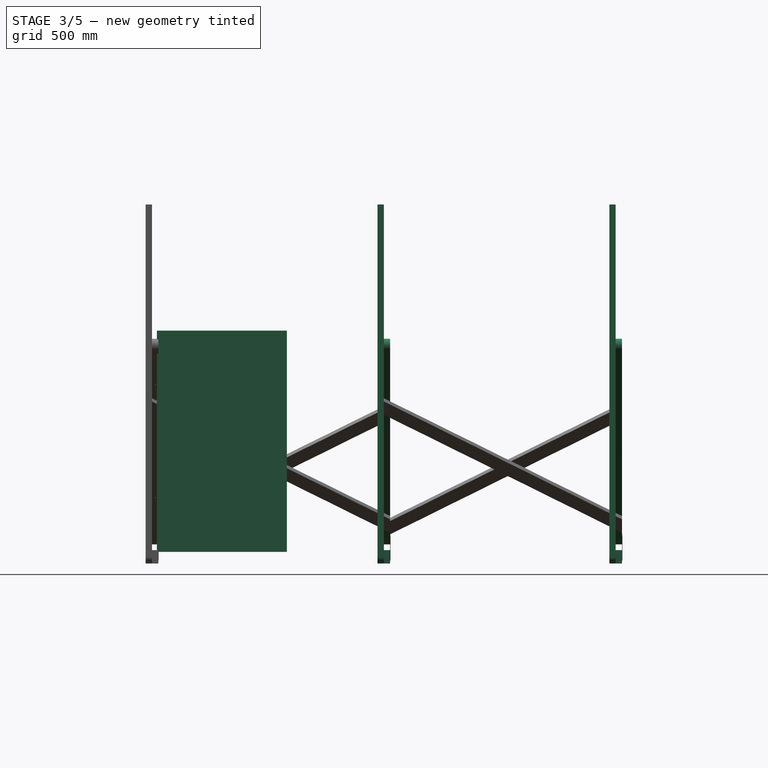
[diagram: stage 3 of 5 — right view after this stage's code; geometry added in this stage tinted green]
FEATURE [Sketcher::SketchObject] Sketch001
  Placement = pos=(0,0,0) rot=(0.57735,0.57735,0.57735;2.0944rad)
  sketch-geometry (4):
    g0: LineSegment StartX=35 StartY=35 StartZ=0 EndX=957 EndY=35 EndZ=0
    g1: LineSegment StartX=957 StartY=35 StartZ=0 EndX=957 EndY=1605 EndZ=0
    g2: LineSegment StartX=957 StartY=1605 StartZ=0 EndX=35 EndY=1605 EndZ=0
    g3: LineSegment StartX=35 StartY=1605 StartZ=0 EndX=35 EndY=35 EndZ=0
  constraints (12):
    c: Coincident(g0,g1)
    c: Coincident(g1,g2)
    c: Coincident(g2,g3)
    c: Coincident(g3,g0)
    c: Horizontal(g0)
    c: Horizontal(g2)
    c: Vertical(g1)
    c: Vertical(g3)
    c: DistanceX(g-2,g0) = 35
    c: DistanceY(g-1,g0) = 35
    c: DistanceX(g0,g0) = 922
    c: DistanceY(g1,g1) = 1570
FEATURE [PartDesign::Pad] Pad001  label="Gröpner"
  Length = 20
  Length2 = 100
  Placement = pos=(0,0,0) rot=(0.57735,0.57735,0.57735;2.0944rad)
  Sketch = -> Sketch001
  Type = 0
FEATURE [Part::Cylinder] Cylinder
  Angle = 360
  Height = 10
  Placement = pos=(0,25,420) rot=(0,1,0;1.5708rad)
  Radius = 4.5
FEATURE [Part::Cylinder] Cylinder001
  Angle = 360
  Height = 10
  Placement = pos=(0,25,1220) rot=(0,1,0;1.5708rad)
  Radius = 4.5
FEATURE [Part::Fuse] Fusion
  Base = -> Cylinder
  Tool = -> Cylinder001
FEATURE [Spreadsheet::Sheet] Spreadsheet
  cells = A1=Timmer tjocklek; B1(timmer_tjock)==45mm; A2=Timmer bredd; B2(timmer_bredd)==95mm; A3=Panel bredd; B3(panel_bredd)==992mm; A4=Panel höjd; B4(panel_h)==1640mm; A5=Panel delning; B5(panel_delning)==B4 + B2 - 2 * B1; A6=Vipparm mitt; B6(vipp_center)==1500mm; C6=Vars justeringsarmen ansluter till vipparmen; A7=Antal paneler; B7(antal_paneler)=4; C7=Måste vara 2, 6, 10, 14 osv
FEATURE [Part::Compound] Compound
  Links = -> [Pad011,Pad008,Pad009]
FEATURE [Part::FeaturePython] Array001  label="Ställning"  # Draft array (typed FeaturePython)
  Angle = 360
  ArrayType = 0
  Axis = (0,0,1)
  Base = -> Compound
  Center = (0,0,0)
  Fuse = false
  IntervalAxis = (0,0,0)
  IntervalX = (1,0,0)
  IntervalY = (0,1645,0)
  IntervalZ = (0,0,0)
  NumberPolar = 1
  NumberX = 1
  NumberY = 3
  NumberZ = 1
  Placement = pos=(-1.508e-09,0,1e-12) rot=(0,0,1;0rad)
  expr: NumberY = Spreadsheet.antal_paneler / 2 + 1
  expr: IntervalY.y = Spreadsheet.panel_delning
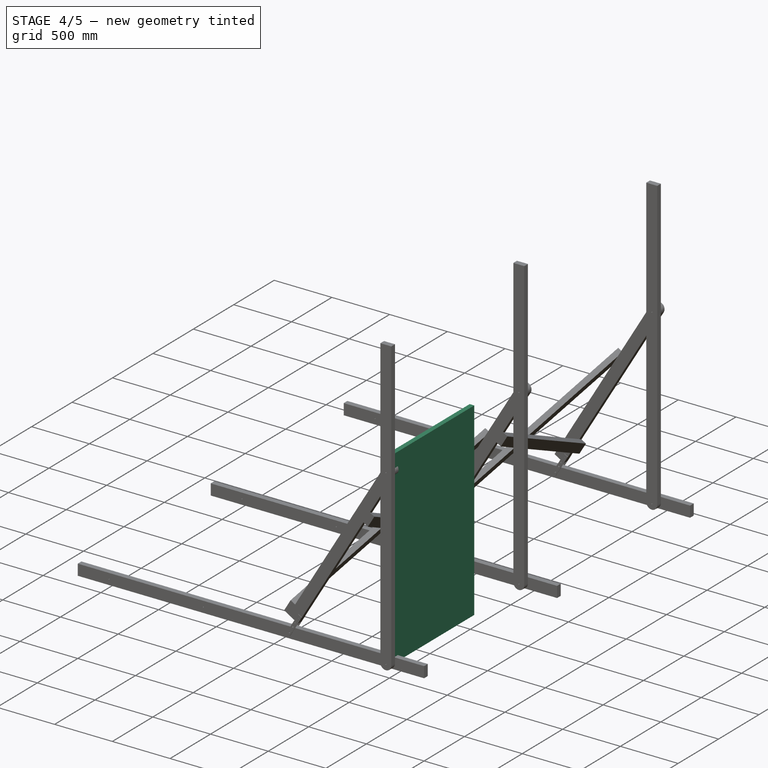
[diagram: stage 4 of 5 — iso view after this stage's code; geometry added in this stage tinted green]
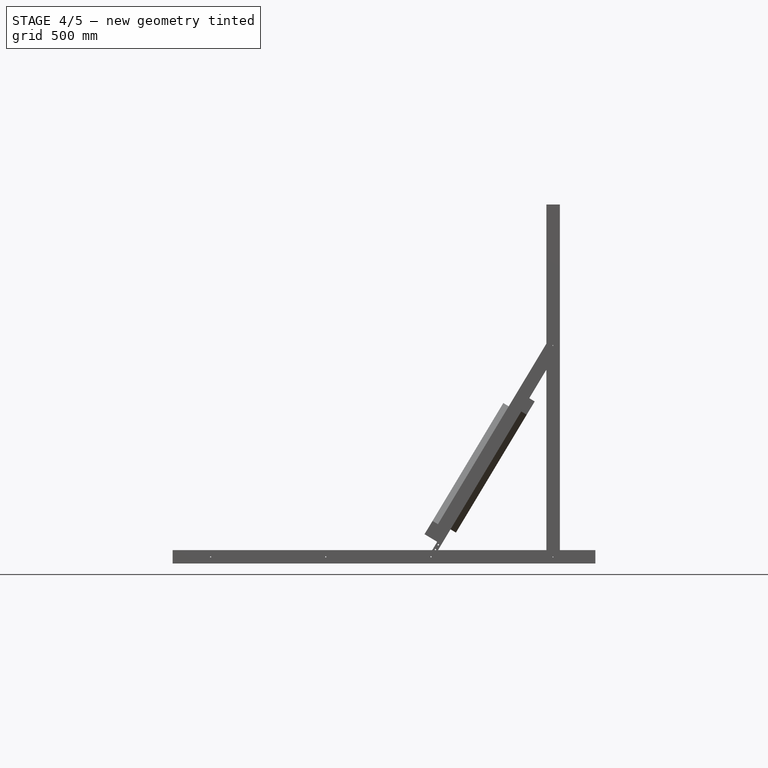
[diagram: stage 4 of 5 — front view after this stage's code; geometry added in this stage tinted green]
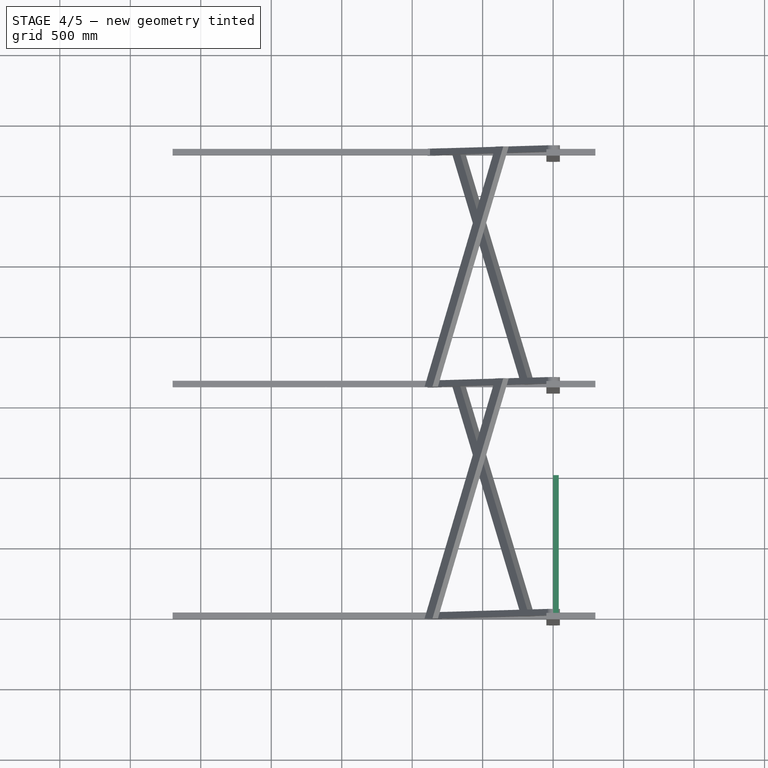
[diagram: stage 4 of 5 — top view after this stage's code; geometry added in this stage tinted green]
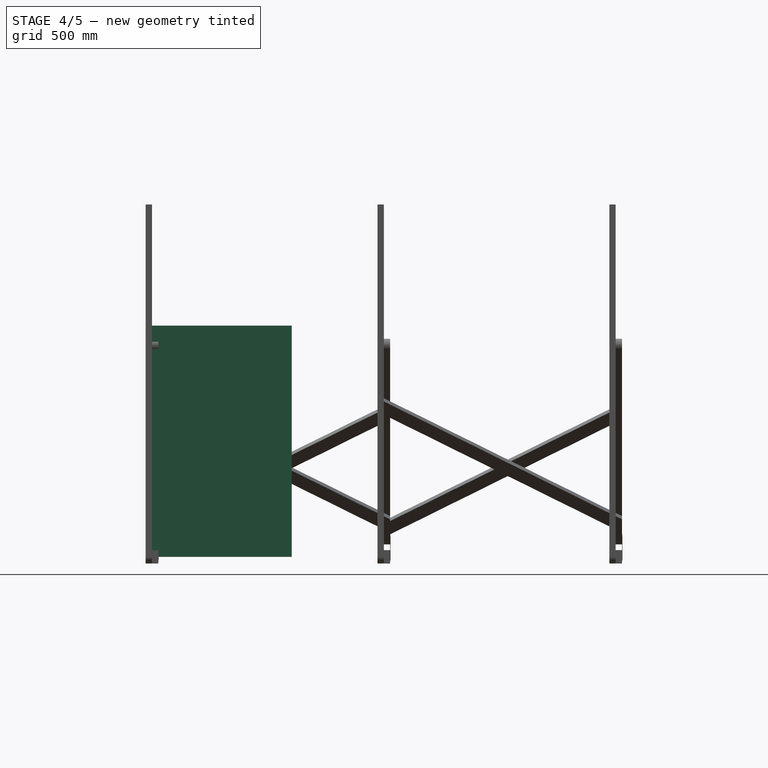
[diagram: stage 4 of 5 — right view after this stage's code; geometry added in this stage tinted green]
FEATURE [Sketcher::SketchObject] Sketch
  Placement = pos=(0,0,0) rot=(0.57735,0.57735,0.57735;2.0944rad)
  sketch-geometry (4):
    g0: LineSegment StartX=0 StartY=0 StartZ=0 EndX=992 EndY=0 EndZ=0
    g1: LineSegment StartX=992 StartY=0 StartZ=0 EndX=992 EndY=1640 EndZ=0
    g2: LineSegment StartX=992 StartY=1640 StartZ=0 EndX=0 EndY=1640 EndZ=0
    g3: LineSegment StartX=0 StartY=1640 StartZ=0 EndX=0 EndY=0 EndZ=0
  constraints (11):
    c: Coincident(g0,g1)
    c: Coincident(g1,g2)
    c: Coincident(g2,g3)
    c: Coincident(g3,g0)
    c: Horizontal(g0)
    c: Horizontal(g2)
    c: Vertical(g1)
    c: Vertical(g3)
    c: Coincident(g0,g-1)
    c: DistanceX(g0,g0) = 992
    c: DistanceY(g3,g3) = 1640
FEATURE [PartDesign::Pad] Pad  label="Bas"
  Length = 40
  Length2 = 100
  Placement = pos=(0,0,0) rot=(0.57735,0.57735,0.57735;2.0944rad)
  Sketch = -> Sketch
  Type = 0
FEATURE [Sketcher::SketchObject] Sketch002
  Placement = pos=(3,0,0) rot=(0.57735,0.57735,0.57735;2.0944rad)
  sketch-geometry (4):
    g0: LineSegment StartX=11 StartY=11 StartZ=0 EndX=981 EndY=11 EndZ=0
    g1: LineSegment StartX=981 StartY=11 StartZ=0 EndX=981 EndY=1629 EndZ=0
    g2: LineSegment StartX=981 StartY=1629 StartZ=0 EndX=11 EndY=1629 EndZ=0
    g3: LineSegment StartX=11 StartY=1629 StartZ=0 EndX=11 EndY=11 EndZ=0
  constraints (12):
    c: Coincident(g0,g1)
    c: Coincident(g1,g2)
    c: Coincident(g2,g3)
    c: Coincident(g3,g0)
    c: Horizontal(g0)
    c: Horizontal(g2)
    c: Vertical(g1)
    c: Vertical(g3)
    c: DistanceX(g-2,g0) = 11
    c: DistanceY(g-1,g0) = 11
    c: DistanceX(g0,g0) = 970
    c: DistanceY(g1,g1) = 1618
FEATURE [PartDesign::Pad] Pad002  label="Gröpkant"
  Length = 27
  Length2 = 100
  Placement = pos=(3,0,0) rot=(0.57735,0.57735,0.57735;2.0944rad)
  Sketch = -> Sketch002
  Type = 0
FEATURE [Part::Cut] Cut
  Base = -> Pad
  Tool = -> Pad001
FEATURE [Part::Cut] Cut001
  Base = -> Cut
  Tool = -> Pad002
FEATURE [Part::Cut] Cut002
  Base = -> Cut001
  Tool = -> Fusion
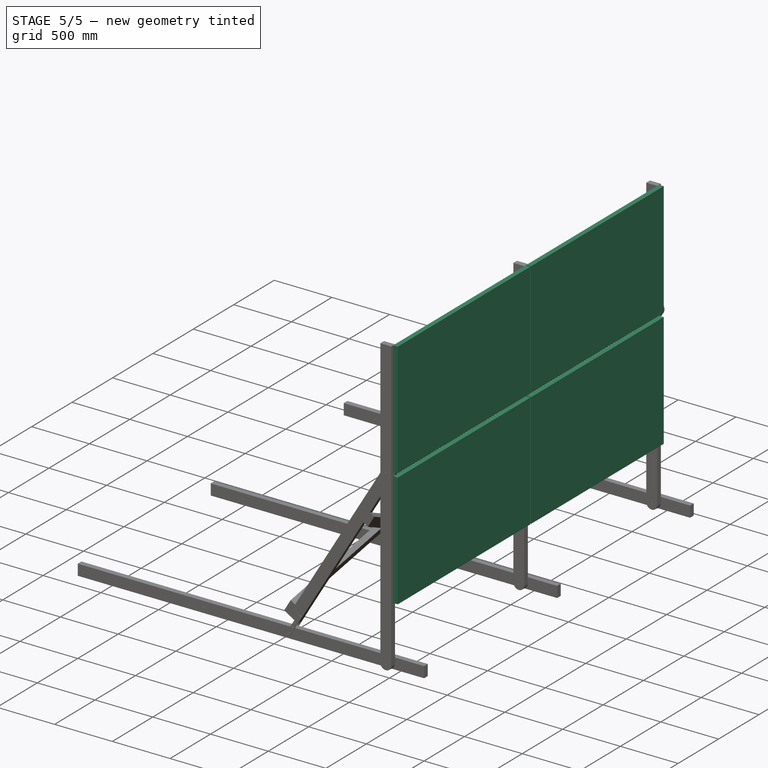
[diagram: stage 5 of 5 — iso view after this stage's code; geometry added in this stage tinted green]
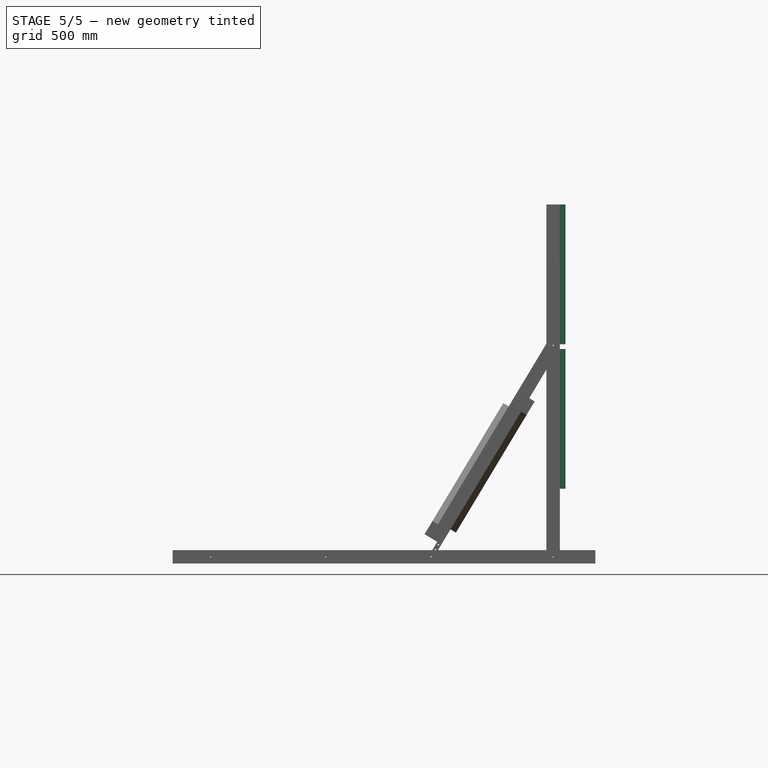
[diagram: stage 5 of 5 — front view after this stage's code; geometry added in this stage tinted green]
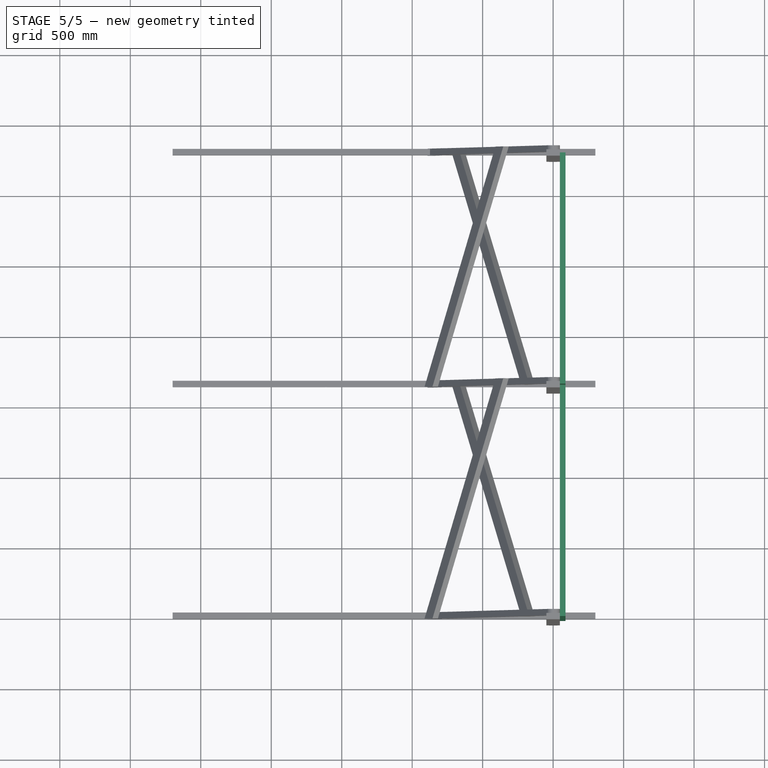
[diagram: stage 5 of 5 — top view after this stage's code; geometry added in this stage tinted green]
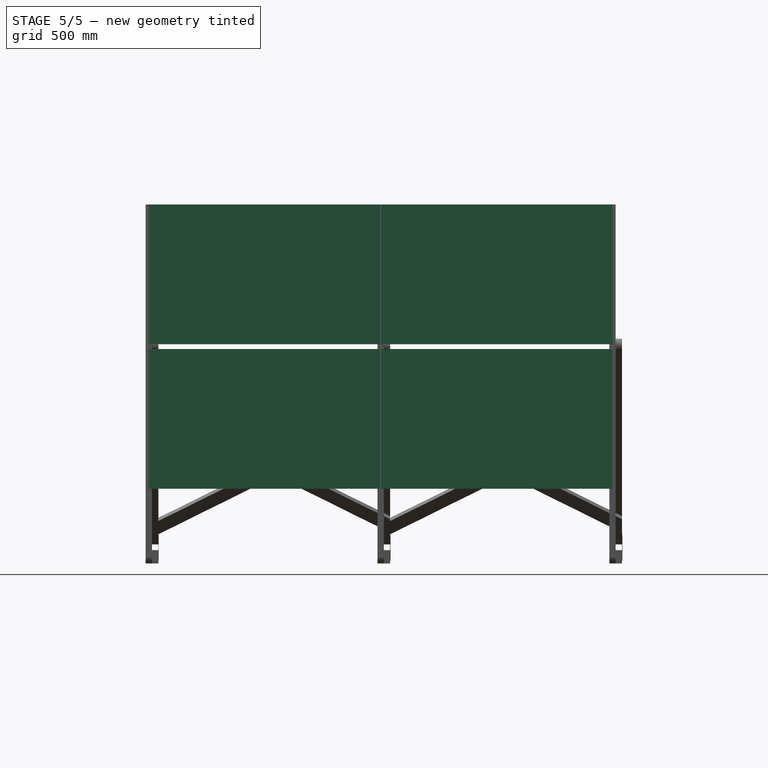
[diagram: stage 5 of 5 — right view after this stage's code; geometry added in this stage tinted green]
FEATURE [Part::Cylinder] Cylinder002
  Angle = 360
  Height = 10
  Placement = pos=(0,25,420) rot=(0,1,0;1.5708rad)
  Radius = 4.5
FEATURE [Part::Cylinder] Cylinder003
  Angle = 360
  Height = 10
  Placement = pos=(0,25,1220) rot=(0,1,0;1.5708rad)
  Radius = 4.5
FEATURE [Part::Fuse] Fusion001
  Base = -> Cylinder002
  Placement = pos=(0,942,0) rot=(0,0,1;0rad)
  Tool = -> Cylinder003
FEATURE [Part::Cut] Cut003  label="Solar panel w holes"
  Base = -> Cut002
  Placement = pos=(-1.507e-09,-1305.59,0) rot=(1,0,0;1.5708rad)
  Tool = -> Fusion001
FEATURE [Part::FeaturePython] Array  label="Paneler"  # Draft array (typed FeaturePython)
  Angle = 270
  ArrayType = 0
  Axis = (0,0,1)
  Base = -> Cut003
  Center = (0,0,0)
  Fuse = false
  IntervalAxis = (0,0,0)
  IntervalX = (1,0,0)
  IntervalY = (0,1650,0)
  IntervalZ = (0,0,1025)
  NumberPolar = 1
  NumberX = 1
  NumberY = 2
  NumberZ = 2
  Placement = pos=(47.5,2923.09,483) rot=(0,0,1;0rad)
  expr: NumberY = Spreadsheet.antal_paneler / 2
  expr: IntervalY.y = Spreadsheet.panel_delning + 5mm
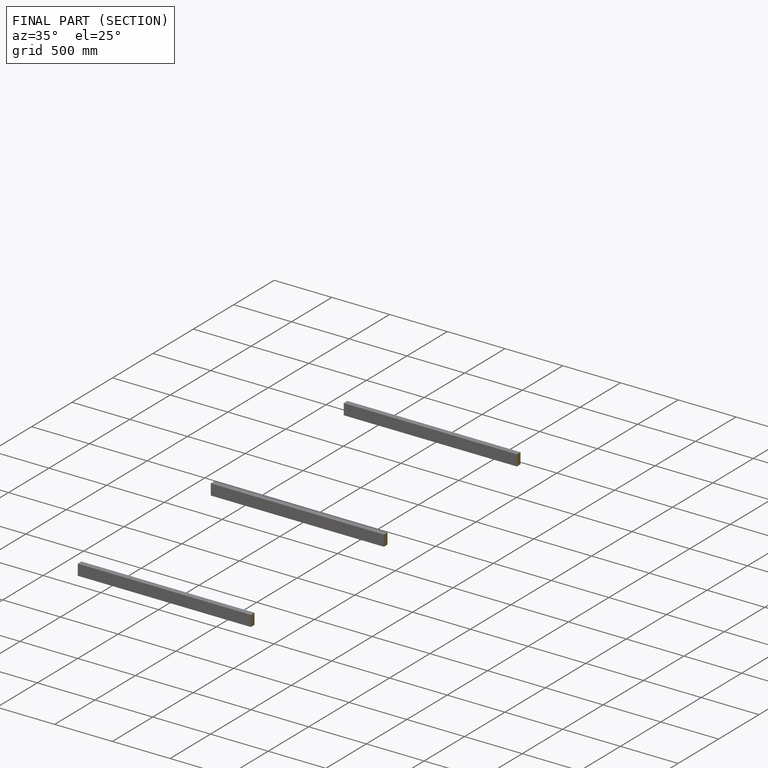
[diagram: finished part — half-section view (interior)]
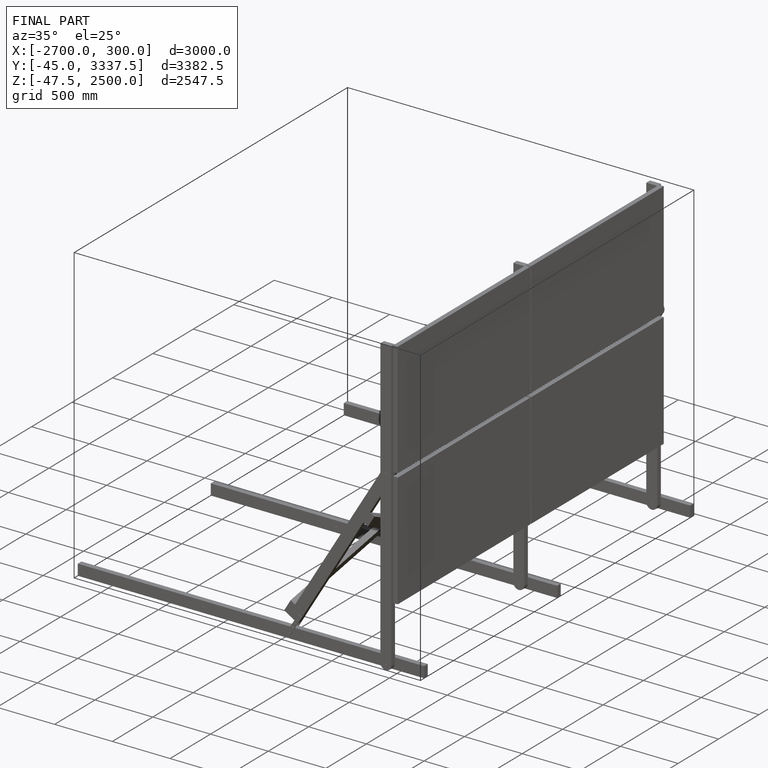
[diagram: finished part — iso view with bounding-box wireframe]
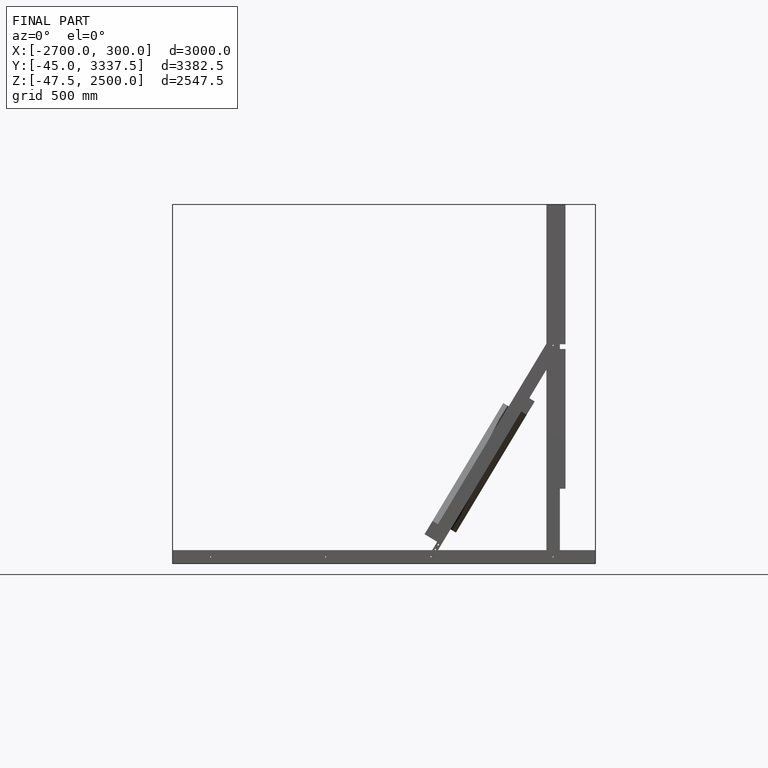
[diagram: finished part — front view with bounding-box wireframe]
